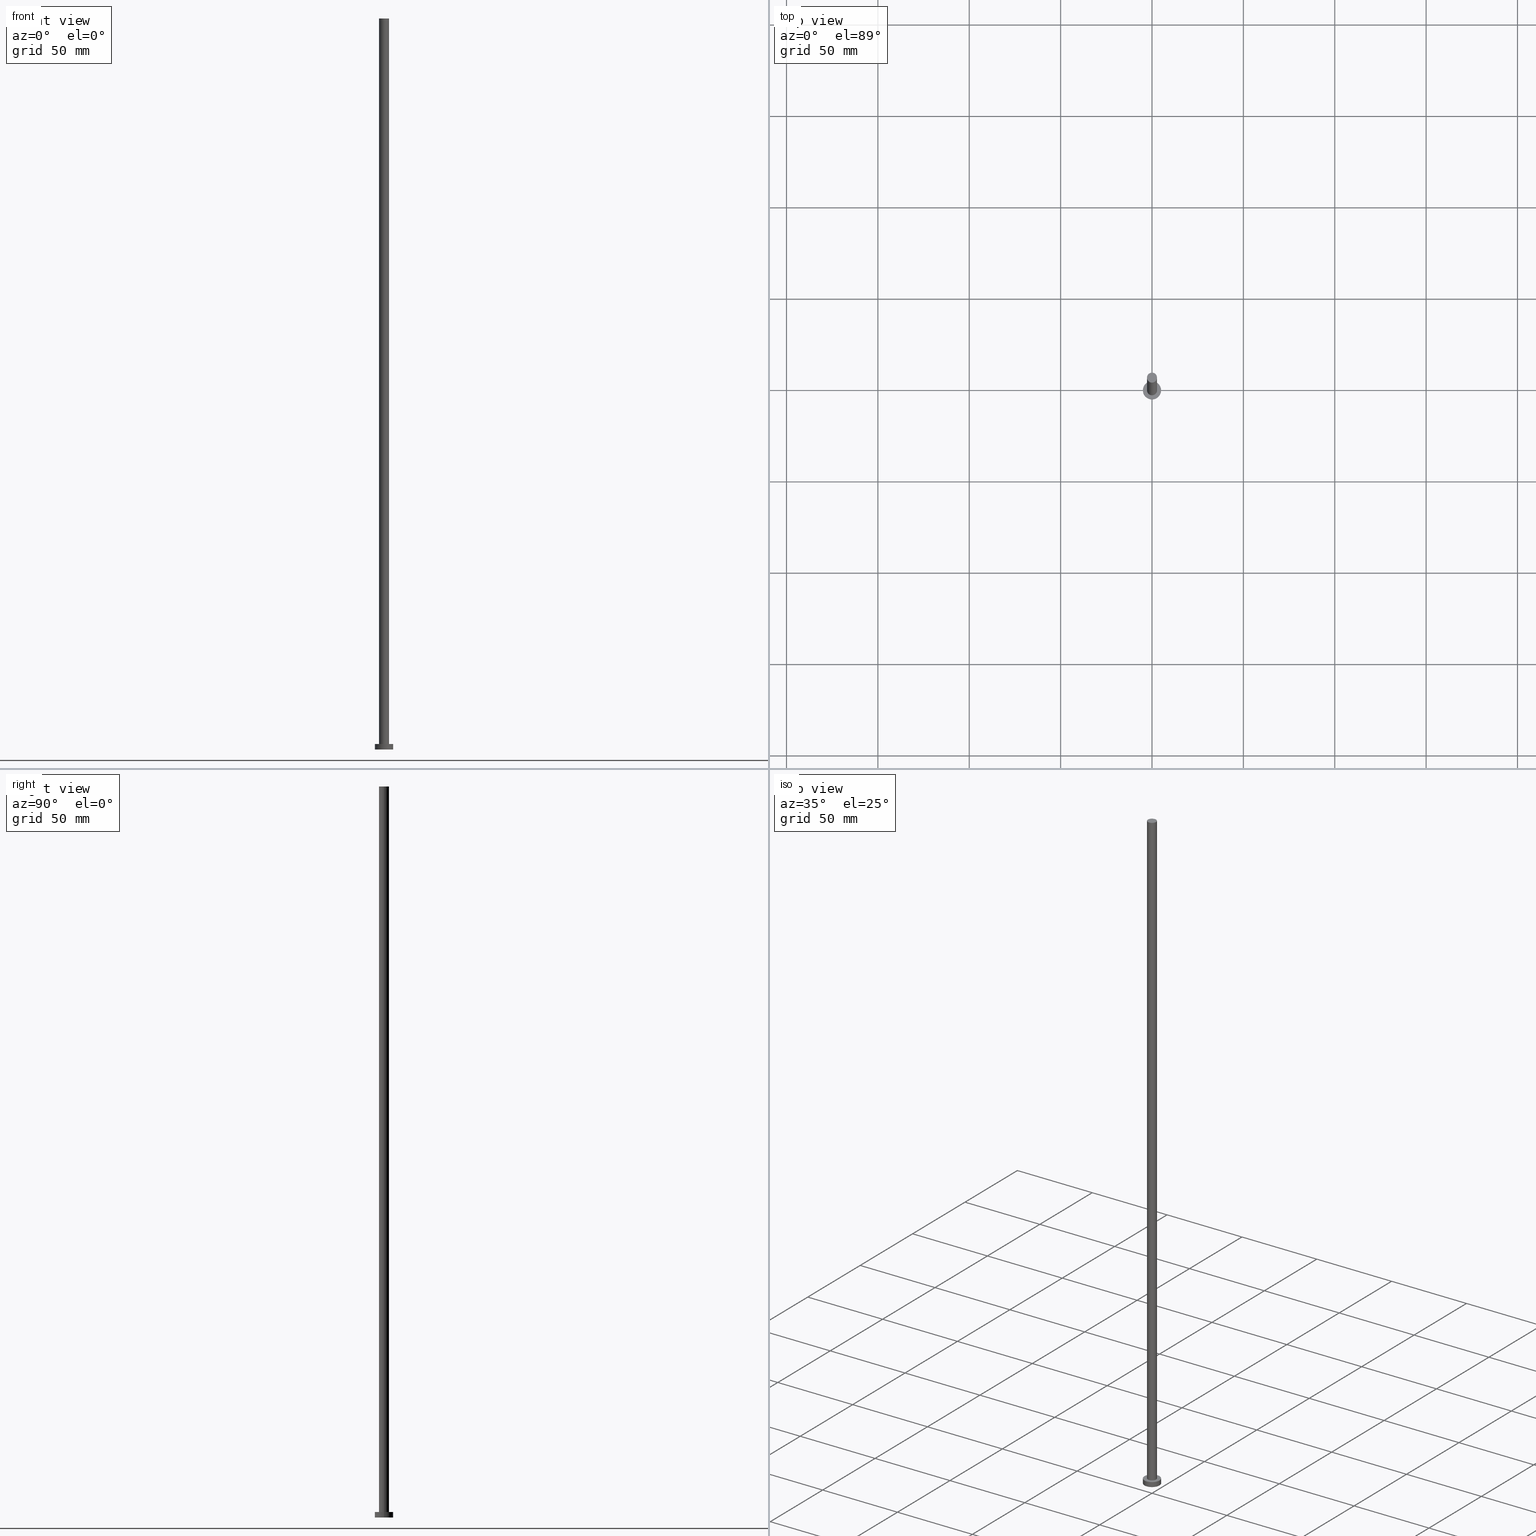
[diagram: canonical four-view strip — front | top / right | iso, engineering-drawing reading convention]
A machine part, canonical four-view strip (front | top / right | iso — engineering-drawing reading convention). The complete STEP part file that produces these views, byte-faithful:
ISO-10303-21;
HEADER;
FILE_DESCRIPTION (( 'STEP AP203' ),
    '1' );
FILE_NAME ('6f8a.STEP',
    '2023-02-13T12:39:04',
    ( '' ),
    ( '' ),
    'SwSTEP 2.0',
    'SolidWorks 2019',
    '' );
FILE_SCHEMA (( 'CONFIG_CONTROL_DESIGN' ));
ENDSEC;

DATA;
#1 = CARTESIAN_POINT ( 'NONE',  ( -5.000000000000000000, 0.000000000000000000, 3.000000000000000000 ) ) ;
#2 = EDGE_CURVE ( 'NONE', #207, #235, #219, .T. ) ;
#3 = LINE ( 'NONE', #237, #63 ) ;
#4 = DIRECTION ( 'NONE',  ( -1.000000000000000000, 0.000000000000000000, 0.000000000000000000 ) ) ;
#5 = DIRECTION ( 'NONE',  ( -0.000000000000000000, -0.000000000000000000, -1.000000000000000000 ) ) ;
#6 = APPROVAL ( #30, 'NEUR�EN�' ) ;
#7 = SECURITY_CLASSIFICATION ( '', '', #142 ) ;
#8 = CARTESIAN_POINT ( 'NONE',  ( 0.000000000000000000, 0.000000000000000000, 0.000000000000000000 ) ) ;
#9 = APPLICATION_PROTOCOL_DEFINITION ( 'international standard', 'config_control_design', 1994, #249 ) ;
#10 = VERTEX_POINT ( 'NONE', #246 ) ;
#11 = ORIENTED_EDGE ( 'NONE', *, *, #85, .F. ) ;
#12 = DIRECTION ( 'NONE',  ( 1.000000000000000000, 0.000000000000000000, 0.000000000000000000 ) ) ;
#13 = EDGE_LOOP ( 'NONE', ( #166, #184 ) ) ;
#14 = PLANE ( 'NONE',  #215 ) ;
#15 = ORIENTED_EDGE ( 'NONE', *, *, #222, .T. ) ;
#16 = ADVANCED_FACE ( 'NONE', ( #191 ), #231, .T. ) ;
#17 = DIRECTION ( 'NONE',  ( 1.000000000000000000, 0.000000000000000000, 0.000000000000000000 ) ) ;
#18 = DIRECTION ( 'NONE',  ( 0.000000000000000000, 0.000000000000000000, 1.000000000000000000 ) ) ;
#19 = DIRECTION ( 'NONE',  ( -0.000000000000000000, -0.000000000000000000, -1.000000000000000000 ) ) ;
#20 = FACE_OUTER_BOUND ( 'NONE', #108, .T. ) ;
#21 = CC_DESIGN_SECURITY_CLASSIFICATION ( #7, ( #228 ) ) ;
#22 = DESIGN_CONTEXT ( 'detailed design', #249, 'design' ) ;
#23 = CC_DESIGN_APPROVAL ( #88, ( #112 ) ) ;
#24 = CIRCLE ( 'NONE', #233, 5.000000000000000000 ) ;
#25 = PERSON_AND_ORGANIZATION ( #213, #135 ) ;
#26 = APPROVAL_STATUS ( 'not_yet_approved' ) ;
#27 = CIRCLE ( 'NONE', #87, 2.750000000000000000 ) ;
#28 = MECHANICAL_CONTEXT ( 'NONE', #234, 'mechanical' ) ;
#29 = EDGE_LOOP ( 'NONE', ( #83, #250 ) ) ;
#30 = APPROVAL_STATUS ( 'not_yet_approved' ) ;
#31 = VERTEX_POINT ( 'NONE', #65 ) ;
#32 = CLOSED_SHELL ( 'NONE', ( #211, #16, #182, #197, #134, #193, #140 ) ) ;
#33 = DIRECTION ( 'NONE',  ( -0.000000000000000000, -0.000000000000000000, -1.000000000000000000 ) ) ;
#34 = CARTESIAN_POINT ( 'NONE',  ( 0.000000000000000000, 0.000000000000000000, 0.000000000000000000 ) ) ;
#35 = AXIS2_PLACEMENT_3D ( 'NONE', #153, #198, #89 ) ;
#36 = VERTEX_POINT ( 'NONE', #44 ) ;
#37 = DIRECTION ( 'NONE',  ( -0.000000000000000000, -0.000000000000000000, -1.000000000000000000 ) ) ;
#38 = DIRECTION ( 'NONE',  ( 0.000000000000000000, 0.000000000000000000, 1.000000000000000000 ) ) ;
#39 = DIRECTION ( 'NONE',  ( 1.000000000000000000, 0.000000000000000000, 0.000000000000000000 ) ) ;
#40 = PERSON_AND_ORGANIZATION ( #213, #135 ) ;
#41 = APPROVAL_PERSON_ORGANIZATION ( #62, #88, #180 ) ;
#42 = CARTESIAN_POINT ( 'NONE',  ( 0.000000000000000000, 0.000000000000000000, 3.000000000000000000 ) ) ;
#43 = CC_DESIGN_DATE_AND_TIME_ASSIGNMENT ( #160, #245, ( #112 ) ) ;
#44 = CARTESIAN_POINT ( 'NONE',  ( -5.000000000000000000, 0.000000000000000000, 0.000000000000000000 ) ) ;
#45 = DIRECTION ( 'NONE',  ( 0.000000000000000000, 0.000000000000000000, 1.000000000000000000 ) ) ;
#46 = APPROVAL_ROLE ( '' ) ;
#47 = CARTESIAN_POINT ( 'NONE',  ( 5.000000000000000000, 6.123233995736766282E-16, 3.000000000000000000 ) ) ;
#48 = FACE_OUTER_BOUND ( 'NONE', #99, .T. ) ;
#49 = ORIENTED_EDGE ( 'NONE', *, *, #222, .F. ) ;
#50 = EDGE_CURVE ( 'NONE', #36, #31, #98, .T. ) ;
#51 =( NAMED_UNIT ( * ) PLANE_ANGLE_UNIT ( ) SI_UNIT ( $, .RADIAN. ) );
#52 = CARTESIAN_POINT ( 'NONE',  ( 0.000000000000000000, 0.000000000000000000, 400.0000000000000000 ) ) ;
#53 = CARTESIAN_POINT ( 'NONE',  ( 0.000000000000000000, 0.000000000000000000, 400.0000000000000000 ) ) ;
#54 = CYLINDRICAL_SURFACE ( 'NONE', #189, 5.000000000000000000 ) ;
#55 = EDGE_CURVE ( 'NONE', #128, #31, #168, .T. ) ;
#56 = DIRECTION ( 'NONE',  ( -1.000000000000000000, 0.000000000000000000, 0.000000000000000000 ) ) ;
#57 = PERSON_AND_ORGANIZATION_ROLE ( 'design_owner' ) ;
#58 = AXIS2_PLACEMENT_3D ( 'NONE', #224, #61, #12 ) ;
#59 = CALENDAR_DATE ( 2023, 13, 2 ) ;
#60 = CALENDAR_DATE ( 2023, 13, 2 ) ;
#61 = DIRECTION ( 'NONE',  ( 0.000000000000000000, 0.000000000000000000, 1.000000000000000000 ) ) ;
#62 = PERSON_AND_ORGANIZATION ( #213, #135 ) ;
#63 = VECTOR ( 'NONE', #5, 1000.000000000000000 ) ;
#64 = EDGE_CURVE ( 'NONE', #110, #128, #127, .T. ) ;
#65 = CARTESIAN_POINT ( 'NONE',  ( 5.000000000000000000, 6.123233995736766282E-16, 0.000000000000000000 ) ) ;
#66 = ORIENTED_EDGE ( 'NONE', *, *, #2, .T. ) ;
#67 = EDGE_LOOP ( 'NONE', ( #49, #159, #162, #66 ) ) ;
#68 = VECTOR ( 'NONE', #19, 1000.000000000000000 ) ;
#69 = APPROVAL_ROLE ( '' ) ;
#70 = CC_DESIGN_PERSON_AND_ORGANIZATION_ASSIGNMENT ( #102, #109, ( #7 ) ) ;
#71 = ORIENTED_EDGE ( 'NONE', *, *, #103, .F. ) ;
#72 = DIRECTION ( 'NONE',  ( 0.000000000000000000, 0.000000000000000000, 1.000000000000000000 ) ) ;
#73 = ORIENTED_EDGE ( 'NONE', *, *, #90, .T. ) ;
#74 = DIRECTION ( 'NONE',  ( -1.000000000000000000, 0.000000000000000000, 0.000000000000000000 ) ) ;
#75 = AXIS2_PLACEMENT_3D ( 'NONE', #52, #93, #74 ) ;
#76 = DIRECTION ( 'NONE',  ( 0.000000000000000000, 0.000000000000000000, 1.000000000000000000 ) ) ;
#77 = DIRECTION ( 'NONE',  ( 0.000000000000000000, 0.000000000000000000, 1.000000000000000000 ) ) ;
#78 = PRODUCT_RELATED_PRODUCT_CATEGORY ( 'detail', '', ( #177 ) ) ;
#79 = COORDINATED_UNIVERSAL_TIME_OFFSET ( 1, 0, .AHEAD. ) ;
#80 = ORIENTED_EDGE ( 'NONE', *, *, #50, .T. ) ;
#81 = APPROVAL_DATE_TIME ( #125, #88 ) ;
#82 = AXIS2_PLACEMENT_3D ( 'NONE', #126, #210, #144 ) ;
#83 = ORIENTED_EDGE ( 'NONE', *, *, #64, .T. ) ;
#84 = DIRECTION ( 'NONE',  ( -0.000000000000000000, -0.000000000000000000, -1.000000000000000000 ) ) ;
#85 = EDGE_CURVE ( 'NONE', #31, #36, #133, .T. ) ;
#86 = ORIENTED_EDGE ( 'NONE', *, *, #50, .F. ) ;
#87 = AXIS2_PLACEMENT_3D ( 'NONE', #232, #45, #255 ) ;
#88 = APPROVAL ( #131, 'NEUR�EN�' ) ;
#89 = DIRECTION ( 'NONE',  ( 1.000000000000000000, 0.000000000000000000, -0.000000000000000000 ) ) ;
#90 = EDGE_CURVE ( 'NONE', #10, #229, #27, .T. ) ;
#91 =( GEOMETRIC_REPRESENTATION_CONTEXT ( 3 ) GLOBAL_UNCERTAINTY_ASSIGNED_CONTEXT ( ( #119 ) ) GLOBAL_UNIT_ASSIGNED_CONTEXT ( ( #151, #51, #114 ) ) REPRESENTATION_CONTEXT ( 'NONE', 'WORKASPACE' ) );
#92 = AXIS2_PLACEMENT_3D ( 'NONE', #137, #241, #118 ) ;
#93 = DIRECTION ( 'NONE',  ( -0.000000000000000000, -0.000000000000000000, -1.000000000000000000 ) ) ;
#94 = CARTESIAN_POINT ( 'NONE',  ( 0.000000000000000000, 0.000000000000000000, 3.000000000000000000 ) ) ;
#95 = CALENDAR_DATE ( 2023, 13, 2 ) ;
#96 = APPROVAL_DATE_TIME ( #247, #164 ) ;
#97 = CC_DESIGN_APPROVAL ( #6, ( #228 ) ) ;
#98 = CIRCLE ( 'NONE', #58, 5.000000000000000000 ) ;
#99 = EDGE_LOOP ( 'NONE', ( #73, #101 ) ) ;
#100 = COORDINATED_UNIVERSAL_TIME_OFFSET ( 1, 0, .AHEAD. ) ;
#101 = ORIENTED_EDGE ( 'NONE', *, *, #192, .T. ) ;
#102 = PERSON_AND_ORGANIZATION ( #213, #135 ) ;
#103 = EDGE_CURVE ( 'NONE', #110, #36, #170, .T. ) ;
#104 = EDGE_LOOP ( 'NONE', ( #205, #149, #113, #80 ) ) ;
#105 = LOCAL_TIME ( 13, 39, 4.000000000000000000, #138 ) ;
#106 = ORIENTED_EDGE ( 'NONE', *, *, #55, .T. ) ;
#107 = EDGE_LOOP ( 'NONE', ( #86, #11 ) ) ;
#108 = EDGE_LOOP ( 'NONE', ( #208, #15, #186, #141 ) ) ;
#109 = PERSON_AND_ORGANIZATION_ROLE ( 'classification_officer' ) ;
#110 = VERTEX_POINT ( 'NONE', #214 ) ;
#111 = CIRCLE ( 'NONE', #124, 2.750000000000000000 ) ;
#112 = PRODUCT_DEFINITION ( 'NEZN�M�', '', #228, #22 ) ;
#113 = ORIENTED_EDGE ( 'NONE', *, *, #103, .T. ) ;
#114 =( NAMED_UNIT ( * ) SI_UNIT ( $, .STERADIAN. ) SOLID_ANGLE_UNIT ( ) );
#115 = LOCAL_TIME ( 13, 39, 4.000000000000000000, #148 ) ;
#116 = FACE_BOUND ( 'NONE', #13, .T. ) ;
#117 = CARTESIAN_POINT ( 'NONE',  ( 0.000000000000000000, 0.000000000000000000, 400.0000000000000000 ) ) ;
#118 = DIRECTION ( 'NONE',  ( 1.000000000000000000, 0.000000000000000000, -0.000000000000000000 ) ) ;
#119 = UNCERTAINTY_MEASURE_WITH_UNIT (LENGTH_MEASURE( 1.000000000000000082E-05 ), #151, 'distance_accuracy_value', 'NONE');
#120 = PLANE ( 'NONE',  #35 ) ;
#121 = CC_DESIGN_PERSON_AND_ORGANIZATION_ASSIGNMENT ( #252, #185, ( #112 ) ) ;
#122 = CALENDAR_DATE ( 2023, 13, 2 ) ;
#123 = DATE_AND_TIME ( #122, #115 ) ;
#124 = AXIS2_PLACEMENT_3D ( 'NONE', #117, #38, #39 ) ;
#125 = DATE_AND_TIME ( #221, #223 ) ;
#126 = CARTESIAN_POINT ( 'NONE',  ( 0.000000000000000000, 0.000000000000000000, 3.000000000000000000 ) ) ;
#127 = CIRCLE ( 'NONE', #254, 5.000000000000000000 ) ;
#128 = VERTEX_POINT ( 'NONE', #129 ) ;
#129 = CARTESIAN_POINT ( 'NONE',  ( 5.000000000000000000, 6.123233995736766282E-16, 3.000000000000000000 ) ) ;
#130 = EDGE_LOOP ( 'NONE', ( #251, #106, #146, #71 ) ) ;
#131 = APPROVAL_STATUS ( 'not_yet_approved' ) ;
#132 = DIRECTION ( 'NONE',  ( 1.000000000000000000, 0.000000000000000000, 0.000000000000000000 ) ) ;
#133 = CIRCLE ( 'NONE', #143, 5.000000000000000000 ) ;
#134 = ADVANCED_FACE ( 'NONE', ( #169 ), #14, .F. ) ;
#135 = ORGANIZATION ( 'NEUR�EN�', 'NEUR�EN�', '' ) ;
#136 = CARTESIAN_POINT ( 'NONE',  ( 0.000000000000000000, 0.000000000000000000, 3.000000000000000000 ) ) ;
#137 = CARTESIAN_POINT ( 'NONE',  ( 0.000000000000000000, 0.000000000000000000, 400.0000000000000000 ) ) ;
#138 = COORDINATED_UNIVERSAL_TIME_OFFSET ( 1, 0, .AHEAD. ) ;
#139 = PERSON_AND_ORGANIZATION ( #213, #135 ) ;
#140 = ADVANCED_FACE ( 'NONE', ( #48 ), #238, .T. ) ;
#141 = ORIENTED_EDGE ( 'NONE', *, *, #230, .F. ) ;
#142 = SECURITY_CLASSIFICATION_LEVEL ( 'unclassified' ) ;
#143 = AXIS2_PLACEMENT_3D ( 'NONE', #227, #212, #17 ) ;
#144 = DIRECTION ( 'NONE',  ( 1.000000000000000000, 0.000000000000000000, 0.000000000000000000 ) ) ;
#145 = DIRECTION ( 'NONE',  ( 0.000000000000000000, 0.000000000000000000, 1.000000000000000000 ) ) ;
#146 = ORIENTED_EDGE ( 'NONE', *, *, #85, .T. ) ;
#147 = APPROVAL_PERSON_ORGANIZATION ( #156, #164, #46 ) ;
#148 = COORDINATED_UNIVERSAL_TIME_OFFSET ( 1, 0, .AHEAD. ) ;
#149 = ORIENTED_EDGE ( 'NONE', *, *, #64, .F. ) ;
#150 = DIRECTION ( 'NONE',  ( 1.000000000000000000, 0.000000000000000000, -0.000000000000000000 ) ) ;
#151 =( LENGTH_UNIT ( ) NAMED_UNIT ( * ) SI_UNIT ( .MILLI., .METRE. ) );
#152 = CC_DESIGN_PERSON_AND_ORGANIZATION_ASSIGNMENT ( #202, #206, ( #228 ) ) ;
#153 = CARTESIAN_POINT ( 'NONE',  ( 0.000000000000000000, 0.000000000000000000, 3.000000000000000000 ) ) ;
#154 = AXIS2_PLACEMENT_3D ( 'NONE', #226, #190, #165 ) ;
#155 = CARTESIAN_POINT ( 'NONE',  ( 2.750000000000000000, 3.367778697655221012E-16, 3.000000000000000000 ) ) ;
#156 = PERSON_AND_ORGANIZATION ( #213, #135 ) ;
#157 = PERSON_AND_ORGANIZATION_ROLE ( 'creator' ) ;
#158 = CC_DESIGN_PERSON_AND_ORGANIZATION_ASSIGNMENT ( #40, #57, ( #177 ) ) ;
#159 = ORIENTED_EDGE ( 'NONE', *, *, #90, .F. ) ;
#160 = DATE_AND_TIME ( #59, #194 ) ;
#161 = MANIFOLD_SOLID_BREP ( 'P�idat vysunut�m3', #32 ) ;
#162 = ORIENTED_EDGE ( 'NONE', *, *, #230, .T. ) ;
#163 = APPROVAL_PERSON_ORGANIZATION ( #139, #6, #69 ) ;
#164 = APPROVAL ( #26, 'NEUR�EN�' ) ;
#165 = DIRECTION ( 'NONE',  ( -1.000000000000000000, 0.000000000000000000, 0.000000000000000000 ) ) ;
#166 = ORIENTED_EDGE ( 'NONE', *, *, #2, .F. ) ;
#167 = DATE_AND_TIME ( #95, #243 ) ;
#168 = LINE ( 'NONE', #47, #209 ) ;
#169 = FACE_OUTER_BOUND ( 'NONE', #107, .T. ) ;
#170 = LINE ( 'NONE', #1, #240 ) ;
#171 = EDGE_CURVE ( 'NONE', #128, #110, #24, .T. ) ;
#172 = CYLINDRICAL_SURFACE ( 'NONE', #75, 2.750000000000000000 ) ;
#173 = CARTESIAN_POINT ( 'NONE',  ( 2.750000000000000000, 3.367778697655221012E-16, 400.0000000000000000 ) ) ;
#174 = FACE_OUTER_BOUND ( 'NONE', #67, .T. ) ;
#175 = AXIS2_PLACEMENT_3D ( 'NONE', #53, #37, #4 ) ;
#176 = CARTESIAN_POINT ( 'NONE',  ( 2.750000000000000000, 3.367778697655221012E-16, 400.0000000000000000 ) ) ;
#177 = PRODUCT ( '6f8a', '6f8a', '', ( #28 ) ) ;
#178 = CYLINDRICAL_SURFACE ( 'NONE', #175, 2.750000000000000000 ) ;
#179 = PRODUCT_DEFINITION_SHAPE ( 'NONE', 'NONE',  #112 ) ;
#180 = APPROVAL_ROLE ( '' ) ;
#181 = AXIS2_PLACEMENT_3D ( 'NONE', #94, #18, #196 ) ;
#182 = ADVANCED_FACE ( 'NONE', ( #195 ), #54, .T. ) ;
#183 = SHAPE_DEFINITION_REPRESENTATION ( #179, #203 ) ;
#184 = ORIENTED_EDGE ( 'NONE', *, *, #188, .F. ) ;
#185 = PERSON_AND_ORGANIZATION_ROLE ( 'creator' ) ;
#186 = ORIENTED_EDGE ( 'NONE', *, *, #188, .T. ) ;
#187 = DIRECTION ( 'NONE',  ( 1.000000000000000000, 0.000000000000000000, 0.000000000000000000 ) ) ;
#188 = EDGE_CURVE ( 'NONE', #235, #207, #218, .T. ) ;
#189 = AXIS2_PLACEMENT_3D ( 'NONE', #136, #236, #56 ) ;
#190 = DIRECTION ( 'NONE',  ( -0.000000000000000000, -0.000000000000000000, -1.000000000000000000 ) ) ;
#191 = FACE_OUTER_BOUND ( 'NONE', #130, .T. ) ;
#192 = EDGE_CURVE ( 'NONE', #229, #10, #111, .T. ) ;
#193 = ADVANCED_FACE ( 'NONE', ( #174 ), #178, .T. ) ;
#194 = LOCAL_TIME ( 13, 39, 4.000000000000000000, #79 ) ;
#195 = FACE_OUTER_BOUND ( 'NONE', #104, .T. ) ;
#196 = DIRECTION ( 'NONE',  ( 1.000000000000000000, 0.000000000000000000, 0.000000000000000000 ) ) ;
#197 = ADVANCED_FACE ( 'NONE', ( #116, #217 ), #120, .T. ) ;
#198 = DIRECTION ( 'NONE',  ( 0.000000000000000000, 0.000000000000000000, 1.000000000000000000 ) ) ;
#199 = LINE ( 'NONE', #173, #68 ) ;
#200 = APPROVAL_DATE_TIME ( #123, #6 ) ;
#201 = CC_DESIGN_PERSON_AND_ORGANIZATION_ASSIGNMENT ( #25, #157, ( #228 ) ) ;
#202 = PERSON_AND_ORGANIZATION ( #213, #135 ) ;
#203 = ADVANCED_BREP_SHAPE_REPRESENTATION ( '6f8a', ( #161, #248 ), #91 ) ;
#204 = APPLICATION_PROTOCOL_DEFINITION ( 'international standard', 'config_control_design', 1994, #234 ) ;
#205 = ORIENTED_EDGE ( 'NONE', *, *, #55, .F. ) ;
#206 = PERSON_AND_ORGANIZATION_ROLE ( 'design_supplier' ) ;
#207 = VERTEX_POINT ( 'NONE', #216 ) ;
#208 = ORIENTED_EDGE ( 'NONE', *, *, #192, .F. ) ;
#209 = VECTOR ( 'NONE', #84, 1000.000000000000000 ) ;
#210 = DIRECTION ( 'NONE',  ( 0.000000000000000000, 0.000000000000000000, 1.000000000000000000 ) ) ;
#211 = ADVANCED_FACE ( 'NONE', ( #20 ), #172, .T. ) ;
#212 = DIRECTION ( 'NONE',  ( 0.000000000000000000, 0.000000000000000000, 1.000000000000000000 ) ) ;
#213 = PERSON ( 'NEUR�EN�', 'NEUR�EN�', 'NEUR�EN�', ('NEUR�EN�'), ('NEUR�EN�'), ('NEUR�EN�') ) ;
#214 = CARTESIAN_POINT ( 'NONE',  ( -5.000000000000000000, 0.000000000000000000, 3.000000000000000000 ) ) ;
#215 = AXIS2_PLACEMENT_3D ( 'NONE', #34, #72, #150 ) ;
#216 = CARTESIAN_POINT ( 'NONE',  ( -2.750000000000000000, 0.000000000000000000, 3.000000000000000000 ) ) ;
#217 = FACE_OUTER_BOUND ( 'NONE', #29, .T. ) ;
#218 = CIRCLE ( 'NONE', #181, 2.750000000000000000 ) ;
#219 = CIRCLE ( 'NONE', #82, 2.750000000000000000 ) ;
#220 = DIRECTION ( 'NONE',  ( 1.000000000000000000, 0.000000000000000000, 0.000000000000000000 ) ) ;
#221 = CALENDAR_DATE ( 2023, 13, 2 ) ;
#222 = EDGE_CURVE ( 'NONE', #229, #235, #199, .T. ) ;
#223 = LOCAL_TIME ( 13, 39, 4.000000000000000000, #100 ) ;
#224 = CARTESIAN_POINT ( 'NONE',  ( 0.000000000000000000, 0.000000000000000000, 0.000000000000000000 ) ) ;
#225 = COORDINATED_UNIVERSAL_TIME_OFFSET ( 1, 0, .AHEAD. ) ;
#226 = CARTESIAN_POINT ( 'NONE',  ( 0.000000000000000000, 0.000000000000000000, 3.000000000000000000 ) ) ;
#227 = CARTESIAN_POINT ( 'NONE',  ( 0.000000000000000000, 0.000000000000000000, 0.000000000000000000 ) ) ;
#228 = PRODUCT_DEFINITION_FORMATION_WITH_SPECIFIED_SOURCE ( 'LIBOVOLN�', '', #177, .NOT_KNOWN. ) ;
#229 = VERTEX_POINT ( 'NONE', #176 ) ;
#230 = EDGE_CURVE ( 'NONE', #10, #207, #3, .T. ) ;
#231 = CYLINDRICAL_SURFACE ( 'NONE', #154, 5.000000000000000000 ) ;
#232 = CARTESIAN_POINT ( 'NONE',  ( 0.000000000000000000, 0.000000000000000000, 400.0000000000000000 ) ) ;
#233 = AXIS2_PLACEMENT_3D ( 'NONE', #242, #76, #220 ) ;
#234 = APPLICATION_CONTEXT ( 'configuration controlled 3d designs of mechanical parts and assemblies' ) ;
#235 = VERTEX_POINT ( 'NONE', #155 ) ;
#236 = DIRECTION ( 'NONE',  ( -0.000000000000000000, -0.000000000000000000, -1.000000000000000000 ) ) ;
#237 = CARTESIAN_POINT ( 'NONE',  ( -2.750000000000000000, 0.000000000000000000, 400.0000000000000000 ) ) ;
#238 = PLANE ( 'NONE',  #92 ) ;
#239 = CC_DESIGN_DATE_AND_TIME_ASSIGNMENT ( #167, #244, ( #7 ) ) ;
#240 = VECTOR ( 'NONE', #33, 1000.000000000000000 ) ;
#241 = DIRECTION ( 'NONE',  ( 0.000000000000000000, 0.000000000000000000, 1.000000000000000000 ) ) ;
#242 = CARTESIAN_POINT ( 'NONE',  ( 0.000000000000000000, 0.000000000000000000, 3.000000000000000000 ) ) ;
#243 = LOCAL_TIME ( 13, 39, 4.000000000000000000, #225 ) ;
#244 = DATE_TIME_ROLE ( 'classification_date' ) ;
#245 = DATE_TIME_ROLE ( 'creation_date' ) ;
#246 = CARTESIAN_POINT ( 'NONE',  ( -2.750000000000000000, 0.000000000000000000, 400.0000000000000000 ) ) ;
#247 = DATE_AND_TIME ( #60, #105 ) ;
#248 = AXIS2_PLACEMENT_3D ( 'NONE', #8, #77, #187 ) ;
#249 = APPLICATION_CONTEXT ( 'configuration controlled 3d designs of mechanical parts and assemblies' ) ;
#250 = ORIENTED_EDGE ( 'NONE', *, *, #171, .T. ) ;
#251 = ORIENTED_EDGE ( 'NONE', *, *, #171, .F. ) ;
#252 = PERSON_AND_ORGANIZATION ( #213, #135 ) ;
#253 = CC_DESIGN_APPROVAL ( #164, ( #7 ) ) ;
#254 = AXIS2_PLACEMENT_3D ( 'NONE', #42, #145, #132 ) ;
#255 = DIRECTION ( 'NONE',  ( 1.000000000000000000, 0.000000000000000000, 0.000000000000000000 ) ) ;
ENDSEC;
END-ISO-10303-21;
